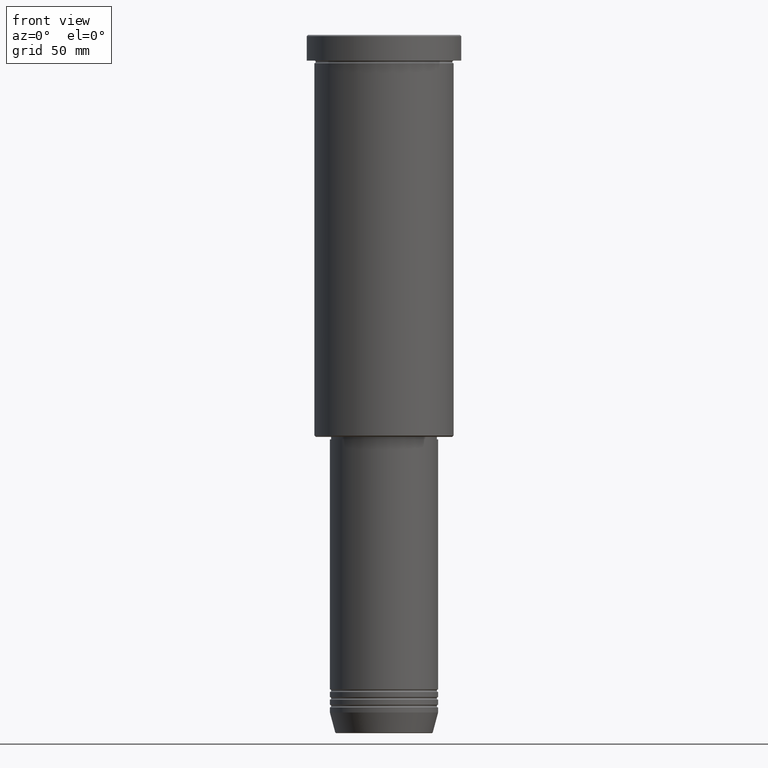
[diagram: clean part render]
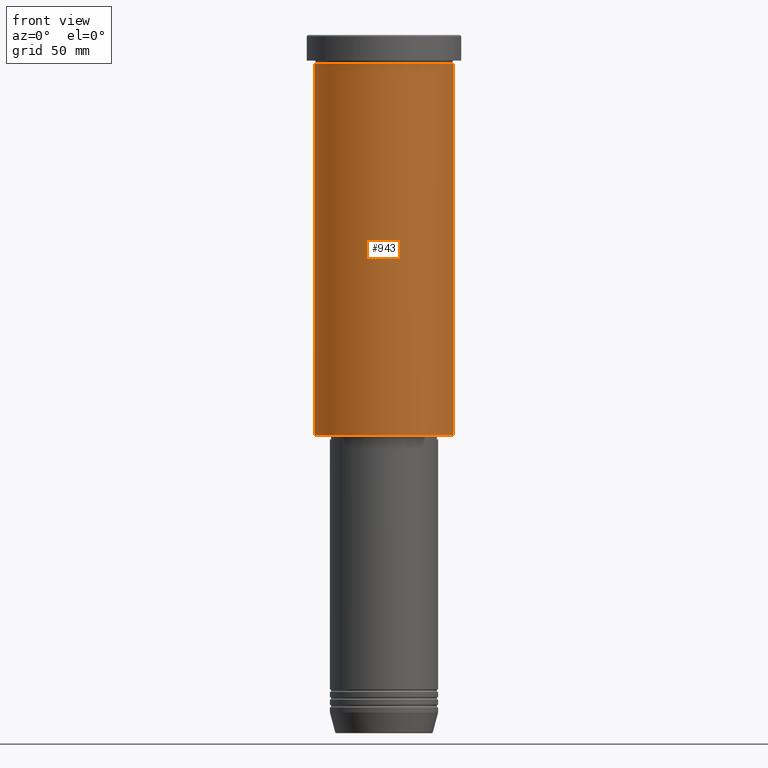
[diagram: same view with one face highlighted and labeled with its STEP entity id]
A machine part, front view. The second image highlights one B-rep face of the part: STEP entity #943.
In plain terms, the highlighted cylindrical surface (partial cylindrical patch) has radius 27 mm, axis along (-0, -0, 1).
Its self-contained STEP definition (entity closure, byte-faithful):
#26 = AXIS2_PLACEMENT_3D ( 'NONE', #762, #1116, #1110 ) ;
#34 = EDGE_CURVE ( 'NONE', #112, #97, #444, .T. ) ;
#54 = CARTESIAN_POINT ( 'NONE',  ( 27.00000000000000355, 0.000000000000000000, -155.5000000000000000 ) ) ;
#97 = VERTEX_POINT ( 'NONE', #968 ) ;
#105 = EDGE_LOOP ( 'NONE', ( #899, #177, #1125, #275 ) ) ;
#112 = VERTEX_POINT ( 'NONE', #273 ) ;
#116 = CARTESIAN_POINT ( 'NONE',  ( 0.000000000000000000, 0.000000000000000000, -10.99999999999999289 ) ) ;
#121 = VECTOR ( 'NONE', #871, 1000.000000000000000 ) ;
#177 = ORIENTED_EDGE ( 'NONE', *, *, #856, .T. ) ;
#185 = CYLINDRICAL_SURFACE ( 'NONE', #406, 27.00000000000000355 ) ;
#190 = VERTEX_POINT ( 'NONE', #54 ) ;
#207 = EDGE_CURVE ( 'NONE', #1141, #112, #227, .T. ) ;
#227 = LINE ( 'NONE', #698, #874 ) ;
#273 = CARTESIAN_POINT ( 'NONE',  ( -27.00000000000000355, 3.306546357697854128E-15, -10.99999999999999289 ) ) ;
#275 = ORIENTED_EDGE ( 'NONE', *, *, #34, .F. ) ;
#325 = CARTESIAN_POINT ( 'NONE',  ( 27.00000000000000355, 0.000000000000000000, 0.000000000000000000 ) ) ;
#334 = CIRCLE ( 'NONE', #26, 27.00000000000000355 ) ;
#406 = AXIS2_PLACEMENT_3D ( 'NONE', #1072, #552, #458 ) ;
#444 = CIRCLE ( 'NONE', #1097, 27.00000000000000355 ) ;
#453 = CARTESIAN_POINT ( 'NONE',  ( -27.00000000000000355, 3.306546357697854128E-15, -155.5000000000000000 ) ) ;
#458 = DIRECTION ( 'NONE',  ( 1.000000000000000000, 0.000000000000000000, 0.000000000000000000 ) ) ;
#479 = DIRECTION ( 'NONE',  ( -0.000000000000000000, -0.000000000000000000, 1.000000000000000000 ) ) ;
#501 = LINE ( 'NONE', #325, #121 ) ;
#552 = DIRECTION ( 'NONE',  ( -0.000000000000000000, -0.000000000000000000, 1.000000000000000000 ) ) ;
#673 = DIRECTION ( 'NONE',  ( 1.000000000000000000, 0.000000000000000000, 0.000000000000000000 ) ) ;
#698 = CARTESIAN_POINT ( 'NONE',  ( -27.00000000000000355, 3.306546357697854128E-15, 0.000000000000000000 ) ) ;
#750 = EDGE_CURVE ( 'NONE', #190, #97, #501, .T. ) ;
#762 = CARTESIAN_POINT ( 'NONE',  ( 0.000000000000000000, 0.000000000000000000, -155.5000000000000000 ) ) ;
#856 = EDGE_CURVE ( 'NONE', #1141, #190, #334, .T. ) ;
#871 = DIRECTION ( 'NONE',  ( -0.000000000000000000, -0.000000000000000000, 1.000000000000000000 ) ) ;
#874 = VECTOR ( 'NONE', #1058, 1000.000000000000000 ) ;
#899 = ORIENTED_EDGE ( 'NONE', *, *, #207, .F. ) ;
#943 = ADVANCED_FACE ( 'NONE', ( #1086 ), #185, .T. ) ;
#968 = CARTESIAN_POINT ( 'NONE',  ( 27.00000000000000355, 0.000000000000000000, -10.99999999999999289 ) ) ;
#1058 = DIRECTION ( 'NONE',  ( -0.000000000000000000, -0.000000000000000000, 1.000000000000000000 ) ) ;
#1072 = CARTESIAN_POINT ( 'NONE',  ( 0.000000000000000000, 0.000000000000000000, 0.000000000000000000 ) ) ;
#1086 = FACE_OUTER_BOUND ( 'NONE', #105, .T. ) ;
#1097 = AXIS2_PLACEMENT_3D ( 'NONE', #116, #479, #673 ) ;
#1110 = DIRECTION ( 'NONE',  ( -1.000000000000000000, 0.000000000000000000, 0.000000000000000000 ) ) ;
#1116 = DIRECTION ( 'NONE',  ( -0.000000000000000000, -0.000000000000000000, 1.000000000000000000 ) ) ;
#1125 = ORIENTED_EDGE ( 'NONE', *, *, #750, .T. ) ;
#1141 = VERTEX_POINT ( 'NONE', #453 ) ;